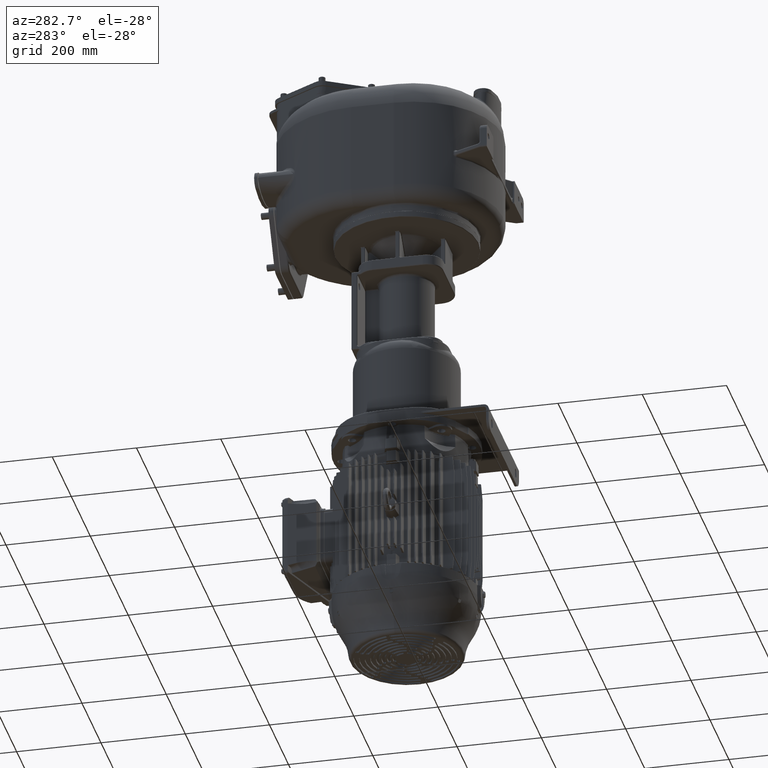
[diagram: clean part render]
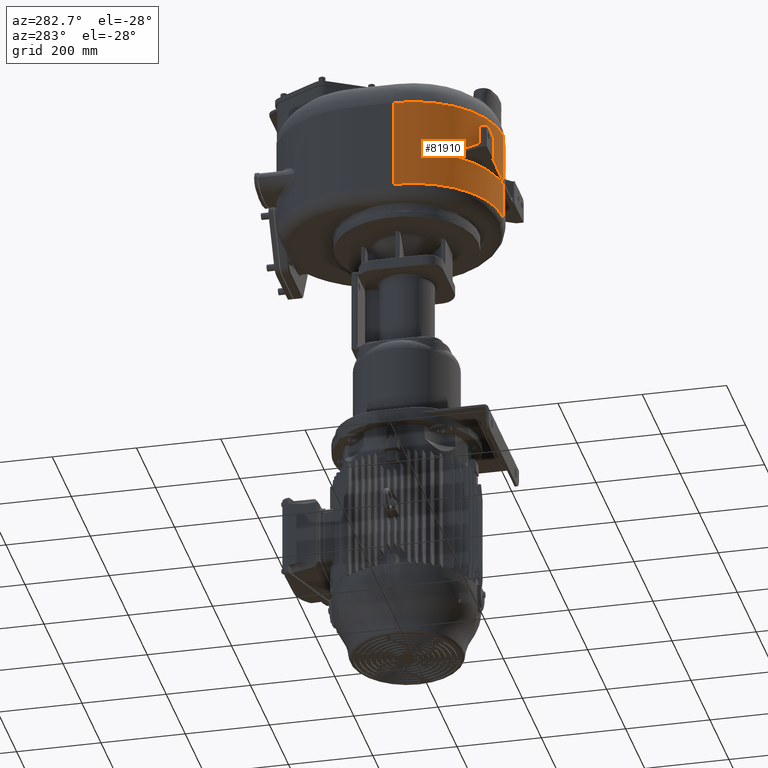
[diagram: same view with one face highlighted and labeled with its STEP entity id]
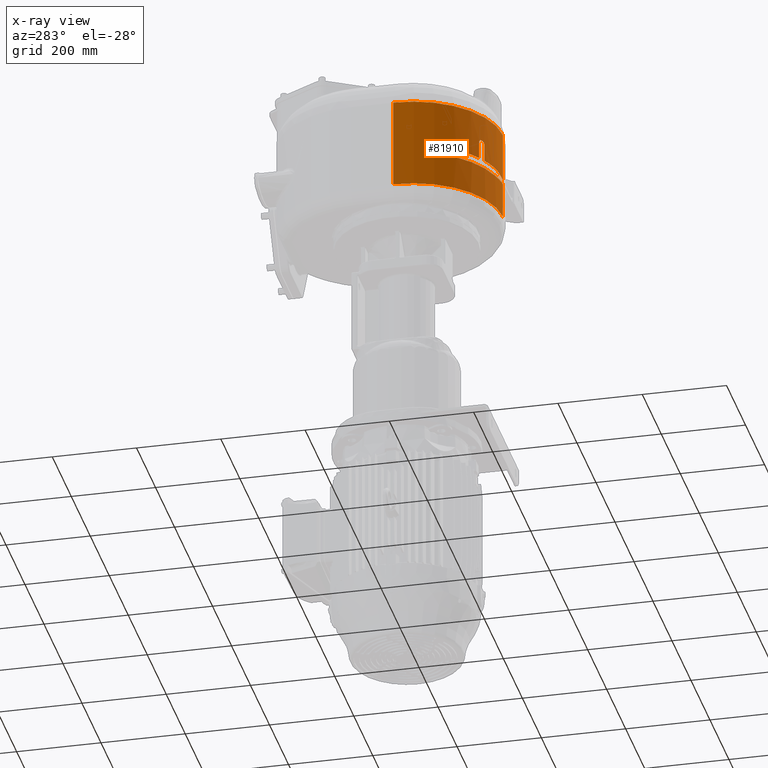
[diagram: x-ray of the same camera — body ghosted, the highlighted face saturated]
A machine part, auxiliary view. The second image highlights one B-rep face of the part: STEP entity #81910.
The next image is the same camera in x-ray: the body ghosted, the highlighted face saturated — about 0% of this face is hidden behind the body in this view.
In plain terms, the highlighted cylindrical surface (partial cylindrical patch) has radius 212 mm, axis along (0, 0, -1).
Its self-contained STEP definition (entity closure, byte-faithful):
#21895=DIRECTION('',(4.513141593375E-11,-3.922041858622E-7,-9.999999999999E-1));
#21896=VECTOR('',#21895,8.512701665594E1);
#21897=CARTESIAN_POINT('',(1.299999999617E1,4.000033387172E0,
-3.487298334407E1));
#21898=LINE('',#21897,#21896);
#21899=CARTESIAN_POINT('',(1.3E1,2.16E2,-1.2E2));
#21900=DIRECTION('',(0.E0,0.E0,-1.E0));
#21901=DIRECTION('',(0.E0,-1.E0,0.E0));
#21902=AXIS2_PLACEMENT_3D('',#21899,#21900,#21901);
#21904=CARTESIAN_POINT('',(1.3E1,2.16E2,9.4E1));
#21905=DIRECTION('',(0.E0,0.E0,1.E0));
#21906=DIRECTION('',(-1.E0,0.E0,0.E0));
#21907=AXIS2_PLACEMENT_3D('',#21904,#21905,#21906);
#21909=DIRECTION('',(2.821944856275E-11,2.893217573858E-7,-1.E0));
#21910=VECTOR('',#21909,1.181270166560E2);
#21911=CARTESIAN_POINT('',(1.300000000004E1,4.E0,9.4E1));
#21912=LINE('',#21911,#21910);
#21913=CARTESIAN_POINT('',(1.300000000338E1,4.000034176716E0,
-2.412701665602E1));
#21914=CARTESIAN_POINT('',(1.237162745277E1,4.000064411701E0,
-2.412677425144E1));
#21915=CARTESIAN_POINT('',(1.109724350928E1,4.005587830284E0,
-2.411535723867E1));
#21916=CARTESIAN_POINT('',(9.147282612950E0,4.031925356394E0,
-2.406714353590E1));
#21917=CARTESIAN_POINT('',(7.116007982803E0,4.078257220314E0,
-2.398490606292E1));
#21918=CARTESIAN_POINT('',(4.975580684508E0,4.148100437059E0,
-2.386522206394E1));
#21919=CARTESIAN_POINT('',(2.696057732537E0,4.246141662673E0,
-2.370355654741E1));
#21920=CARTESIAN_POINT('',(2.315929024124E-1,4.379657219867E0,
-2.349573835312E1));
#21921=CARTESIAN_POINT('',(-2.462465935251E0,4.558259210553E0,
-2.323742179956E1));
#21922=CARTESIAN_POINT('',(-5.443850500277E0,4.796181275642E0,
-2.292451495860E1));
#21923=CARTESIAN_POINT('',(-8.625108674660E0,5.097435990249E0,
-2.256987694279E1));
#21924=CARTESIAN_POINT('',(-1.189250414593E1,5.457837124087E0,
-2.219588249925E1));
#21925=CARTESIAN_POINT('',(-1.515612858986E1,5.869646889473E0,
-2.182355145446E1));
#21926=CARTESIAN_POINT('',(-1.832379331602E1,6.319041217836E0,
-2.147244776413E1));
#21927=CARTESIAN_POINT('',(-2.136023318684E1,6.795832158027E0,
-2.115325002567E1));
#21928=CARTESIAN_POINT('',(-2.425216008936E1,7.292052318312E0,
-2.087127109073E1));
#21929=CARTESIAN_POINT('',(-2.699686308782E1,7.801257045566E0,
-2.062915357448E1));
#21930=CARTESIAN_POINT('',(-2.959600620637E1,8.318034853362E0,
-2.042756480443E1));
#21931=CARTESIAN_POINT('',(-3.205381006348E1,8.837876736388E0,
-2.026618323551E1));
#21932=CARTESIAN_POINT('',(-3.437491595962E1,9.356831112880E0,
-2.014390945827E1));
#21933=CARTESIAN_POINT('',(-3.656290352264E1,9.871143372862E0,
-2.005924917253E1));
#21934=CARTESIAN_POINT('',(-3.862111284008E1,1.037735410997E1,
-2.001031968690E1));
#21935=CARTESIAN_POINT('',(-3.990998583612E1,1.070766018576E1,
-1.999999281673E1));
#21936=CARTESIAN_POINT('',(-4.053349301459E1,1.087037656974E1,
-2.000000000003E1));
#21938=CARTESIAN_POINT('',(1.3E1,2.16E2,-2.E1));
#21939=DIRECTION('',(0.E0,0.E0,-1.E0));
#21940=DIRECTION('',(-2.525164841351E-1,-9.675925925926E-1,0.E0));
#21941=AXIS2_PLACEMENT_3D('',#21938,#21939,#21940);
#21943=DIRECTION('',(-1.009970252130E-6,-2.003315182879E-6,9.999999999975E-1));
#21944=VECTOR('',#21943,4.100000002440E1);
#21945=CARTESIAN_POINT('',(-8.242435041482E1,2.669021856251E1,-2.E1));
#21946=LINE('',#21945,#21944);
#21947=CARTESIAN_POINT('',(-8.242439182360E1,2.669013642659E1,
2.100000002430E1));
#21948=CARTESIAN_POINT('',(-8.242437055612E1,2.669013946063E1,
2.109300576867E1));
#21949=CARTESIAN_POINT('',(-8.242758582931E1,2.669189080320E1,
2.127962382726E1));
#21950=CARTESIAN_POINT('',(-8.244104074505E1,2.669862104190E1,
2.156170637136E1));
#21951=CARTESIAN_POINT('',(-8.246404985416E1,2.671023700079E1,
2.184493863127E1));
#21952=CARTESIAN_POINT('',(-8.249663938084E1,2.672667185530E1,
2.212863502047E1));
#21953=CARTESIAN_POINT('',(-8.253882316192E1,2.674796142819E1,
2.241203433552E1));
#21954=CARTESIAN_POINT('',(-8.259049275679E1,2.677405294226E1,
2.269440190692E1));
#21955=CARTESIAN_POINT('',(-8.265152669118E1,2.680489637953E1,
2.297500795991E1));
#21956=CARTESIAN_POINT('',(-8.272174793532E1,2.684041311955E1,
2.325308994288E1));
#21957=CARTESIAN_POINT('',(-8.280104226065E1,2.688055827719E1,
2.352823343610E1));
#21958=CARTESIAN_POINT('',(-8.288933153921E1,2.692530656670E1,
2.380009588734E1));
#21959=CARTESIAN_POINT('',(-8.298653390671E1,2.697463229748E1,
2.406829487834E1));
#21960=CARTESIAN_POINT('',(-8.309262459145E1,2.702854019940E1,
2.433248565283E1));
#21961=CARTESIAN_POINT('',(-8.320757926381E1,2.708703679564E1,
2.459263923461E1));
#21962=CARTESIAN_POINT('',(-8.333133451695E1,2.715011017752E1,
2.484869084842E1));
#21963=CARTESIAN_POINT('',(-8.346391845280E1,2.721779661157E1,
2.510061514790E1));
#21964=CARTESIAN_POINT('',(-8.360515488528E1,2.729002955504E1,
2.534793853888E1));
#21965=CARTESIAN_POINT('',(-8.375472646364E1,2.736667091799E1,
2.558999630007E1));
#21966=CARTESIAN_POINT('',(-8.391230329438E1,2.744757639330E1,
2.582617793122E1));
#21967=CARTESIAN_POINT('',(-8.407753080825E1,2.753258886942E1,
2.605591305350E1));
#21968=CARTESIAN_POINT('',(-8.425034461750E1,2.762170074547E1,
2.627901898315E1));
#21969=CARTESIAN_POINT('',(-8.443064527765E1,2.771488729278E1,
2.649531924484E1));
#21970=CARTESIAN_POINT('',(-8.461834673342E1,2.781213145989E1,
2.670471961568E1));
#21971=CARTESIAN_POINT('',(-8.481323492863E1,2.791335046959E1,
2.690692671967E1));
#21972=CARTESIAN_POINT('',(-8.501494113519E1,2.801838087778E1,
2.710151137672E1));
#21973=CARTESIAN_POINT('',(-8.522310735834E1,2.812706389510E1,
2.728808932551E1));
#21974=CARTESIAN_POINT('',(-8.543734214313E1,2.823922211475E1,
2.746627656780E1));
#21975=CARTESIAN_POINT('',(-8.565737457966E1,2.835474008828E1,
2.763581067328E1));
#21976=CARTESIAN_POINT('',(-8.588293938124E1,2.847350456483E1,
2.779641726124E1));
#21977=CARTESIAN_POINT('',(-8.611376515421E1,2.859539817814E1,
2.794785607671E1));
#21978=CARTESIAN_POINT('',(-8.634953931403E1,2.872028071056E1,
2.808993723250E1));
#21979=CARTESIAN_POINT('',(-8.658989732943E1,2.884798289412E1,
2.822243550209E1));
#21980=CARTESIAN_POINT('',(-8.683447271049E1,2.897833254975E1,
2.834514228541E1));
#21981=CARTESIAN_POINT('',(-8.708289196431E1,2.911115178293E1,
2.845785612075E1));
#21982=CARTESIAN_POINT('',(-8.733475742795E1,2.924624757566E1,
2.856037723862E1));
#21983=CARTESIAN_POINT('',(-8.758966076425E1,2.938341873998E1,
2.865251737336E1));
#21984=CARTESIAN_POINT('',(-8.784719009992E1,2.952245957089E1,
2.873409764708E1));
#21985=CARTESIAN_POINT('',(-8.810693114042E1,2.966316039514E1,
2.880496853396E1));
#21986=CARTESIAN_POINT('',(-8.836847242988E1,2.980531006751E1,
2.886505443869E1));
#21987=CARTESIAN_POINT('',(-8.863139852648E1,2.994869318828E1,
2.891428587463E1));
#21988=CARTESIAN_POINT('',(-8.889529890708E1,3.009309117104E1,
2.895261532087E1));
#21989=CARTESIAN_POINT('',(-8.915974498661E1,3.023828349406E1,
2.897999257722E1));
#21990=CARTESIAN_POINT('',(-8.942438189462E1,3.038404611709E1,
2.899644740496E1));
#21991=CARTESIAN_POINT('',(-8.960052254986E1,3.048145609983E1,
2.900000446744E1));
#21992=CARTESIAN_POINT('',(-8.968857484883E1,3.053019789379E1,
2.899999999973E1));
#21994=CARTESIAN_POINT('',(1.3E1,2.16E2,2.9E1));
#21995=DIRECTION('',(0.E0,0.E0,-1.E0));
#21996=DIRECTION('',(-4.843801190784E-1,-8.748576457011E-1,0.E0));
#21997=AXIS2_PLACEMENT_3D('',#21994,#21995,#21996);
#21999=CARTESIAN_POINT('',(-9.146814129177E1,3.152667015918E1,
2.899999999998E1));
#22000=CARTESIAN_POINT('',(-9.155468504804E1,3.157569402916E1,
2.900003071213E1));
#22001=CARTESIAN_POINT('',(-9.172780947850E1,3.167388370671E1,
2.899647680225E1));
#22002=CARTESIAN_POINT('',(-9.198784308193E1,3.182187357057E1,
2.898029898864E1));
#22003=CARTESIAN_POINT('',(-9.224733882145E1,3.197003653321E1,
2.895321536720E1));
#22004=CARTESIAN_POINT('',(-9.250571571432E1,3.211804513091E1,
2.891528449959E1));
#22005=CARTESIAN_POINT('',(-9.276232471685E1,3.226551861548E1,
2.886659981461E1));
#22006=CARTESIAN_POINT('',(-9.301652305036E1,3.241207762850E1,
2.880731791595E1));
#22007=CARTESIAN_POINT('',(-9.326778047908E1,3.255740245065E1,
2.873762389401E1));
#22008=CARTESIAN_POINT('',(-9.351591389640E1,3.270137158997E1,
2.865762347228E1));
#22009=CARTESIAN_POINT('',(-9.376067944499E1,3.284382702495E1,
2.856742862142E1));
#22010=CARTESIAN_POINT('',(-9.400191894171E1,3.298465915033E1,
2.846709676840E1));
#22011=CARTESIAN_POINT('',(-9.423956893640E1,3.312381299177E1,
2.835667786110E1));
#22012=CARTESIAN_POINT('',(-9.447360256879E1,3.326125499307E1,
2.823621918487E1));
#22013=CARTESIAN_POINT('',(-9.470367787615E1,3.339676589667E1,
2.810587882856E1));
#22014=CARTESIAN_POINT('',(-9.492917913361E1,3.352996227021E1,
2.796600796244E1));
#22015=CARTESIAN_POINT('',(-9.514955316310E1,3.366049386639E1,
2.781698929852E1));
#22016=CARTESIAN_POINT('',(-9.536440513644E1,3.378810143702E1,
2.765915256588E1));
#22017=CARTESIAN_POINT('',(-9.557344697894E1,3.391258751967E1,
2.749277121964E1));
#22018=CARTESIAN_POINT('',(-9.577634797927E1,3.403372789978E1,
2.731817788704E1));
#22019=CARTESIAN_POINT('',(-9.597308927214E1,3.415148391044E1,
2.713542889917E1));
#22020=CARTESIAN_POINT('',(-9.616370956678E1,3.426585220281E1,
2.694449469843E1));
#22021=CARTESIAN_POINT('',(-9.634826026046E1,3.437683813537E1,
2.674539378231E1));
#22022=CARTESIAN_POINT('',(-9.652647207763E1,3.448425460236E1,
2.653841749238E1));
#22023=CARTESIAN_POINT('',(-9.669806253179E1,3.458790571777E1,
2.632389928888E1));
#22024=CARTESIAN_POINT('',(-9.686275337527E1,3.468759765190E1,
2.610218174647E1));
#22025=CARTESIAN_POINT('',(-9.702013612103E1,3.478305706537E1,
2.587382970491E1));
#22026=CARTESIAN_POINT('',(-9.716983043139E1,3.487402683179E1,
2.563946122986E1));
#22027=CARTESIAN_POINT('',(-9.731156640975E1,3.496031653644E1,
2.539961704887E1));
#22028=CARTESIAN_POINT('',(-9.744540870030E1,3.504194018687E1,
2.515427748168E1));
#22029=CARTESIAN_POINT('',(-9.757134510979E1,3.511886651521E1,
2.490342696093E1));
#22030=CARTESIAN_POINT('',(-9.768938705662E1,3.519108000313E1,
2.464713600438E1));
#22031=CARTESIAN_POINT('',(-9.779944342210E1,3.525850368498E1,
2.438563512310E1));
#22032=CARTESIAN_POINT('',(-9.790144448452E1,3.532107481649E1,
2.411903936263E1));
#22033=CARTESIAN_POINT('',(-9.799516310301E1,3.537863515596E1,
2.384783409492E1));
#22034=CARTESIAN_POINT('',(-9.808027491582E1,3.543096746391E1,
2.357292607950E1));
#22035=CARTESIAN_POINT('',(-9.815652807858E1,3.547789988062E1,
2.329527969978E1));
#22036=CARTESIAN_POINT('',(-9.822388389708E1,3.551939312479E1,
2.301528397107E1));
#22037=CARTESIAN_POINT('',(-9.828237883627E1,3.555545580860E1,
2.273293672181E1));
#22038=CARTESIAN_POINT('',(-9.833197926503E1,3.558605593047E1,
2.244827253503E1));
#22039=CARTESIAN_POINT('',(-9.837264215800E1,3.561115448759E1,
2.216152684918E1));
#22040=CARTESIAN_POINT('',(-9.840433933323E1,3.563073437324E1,
2.187302459181E1));
#22041=CARTESIAN_POINT('',(-9.842706740631E1,3.564475470536E1,
2.158308035536E1));
#22042=CARTESIAN_POINT('',(-9.844066847361E1,3.565323365272E1,
2.129197446042E1));
#22043=CARTESIAN_POINT('',(-9.844391325200E1,3.565505242121E1,
2.109742144004E1));
#22044=CARTESIAN_POINT('',(-9.844391281594E1,3.565506377796E1,
2.099999998002E1));
#22046=DIRECTION('',(1.261698355727E-6,2.041802818780E-6,-9.999999999971E-1));
#22047=VECTOR('',#22046,4.099999998014E1);
#22048=CARTESIAN_POINT('',(-9.844391281594E1,3.565506377796E1,
2.099999998002E1));
#22049=LINE('',#22048,#22047);
#22050=CARTESIAN_POINT('',(1.3E1,2.16E2,-2.E1));
#22051=DIRECTION('',(0.E0,0.E0,-1.E0));
#22052=DIRECTION('',(-5.256785900329E-1,-8.506832665458E-1,0.E0));
#22053=AXIS2_PLACEMENT_3D('',#22050,#22051,#22052);
#22055=CARTESIAN_POINT('',(-1.476564870725E2,7.767629360068E1,
-2.000000000424E1));
#22056=CARTESIAN_POINT('',(-1.477279553283E2,7.775929237307E1,
-2.000000300508E1));
#22057=CARTESIAN_POINT('',(-1.478709224220E2,7.792537370747E1,
-2.000356006508E1));
#22058=CARTESIAN_POINT('',(-1.480851279639E2,7.817542919705E1,
-2.002070724317E1));
#22059=CARTESIAN_POINT('',(-1.482987787121E2,7.842550598528E1,
-2.004912358653E1));
#22060=CARTESIAN_POINT('',(-1.485114299994E2,7.867522689771E1,
-2.008891918470E1));
#22061=CARTESIAN_POINT('',(-1.487226802361E2,7.892407177537E1,
-2.013997137254E1));
#22062=CARTESIAN_POINT('',(-1.489321140338E2,7.917154839855E1,
-2.020219071558E1));
#22063=CARTESIAN_POINT('',(-1.491393293652E2,7.941716085607E1,
-2.027543883501E1));
#22064=CARTESIAN_POINT('',(-1.493439234135E2,7.966041002122E1,
-2.035954007576E1));
#22065=CARTESIAN_POINT('',(-1.495455652687E2,7.990087588150E1,
-2.045430614135E1));
#22066=CARTESIAN_POINT('',(-1.497439668599E2,8.013818546995E1,
-2.055953843785E1));
#22067=CARTESIAN_POINT('',(-1.499388457171E2,8.037196859610E1,
-2.067500944388E1));
#22068=CARTESIAN_POINT('',(-1.501299354936E2,8.060187090486E1,
-2.080046911001E1));
#22069=CARTESIAN_POINT('',(-1.503169079600E2,8.082745998013E1,
-2.093557386386E1));
#22070=CARTESIAN_POINT('',(-1.504994325632E2,8.104829657688E1,
-2.107996010618E1));
#22071=CARTESIAN_POINT('',(-1.506771701274E2,8.126392717712E1,
-2.123322211094E1));
#22072=CARTESIAN_POINT('',(-1.508498558116E2,8.147398502500E1,
-2.139496609971E1));
#22073=CARTESIAN_POINT('',(-1.510173671523E2,8.167827486695E1,
-2.156490708648E1));
#22074=CARTESIAN_POINT('',(-1.511795743359E2,8.187659205087E1,
-2.174274564514E1));
#22075=CARTESIAN_POINT('',(-1.513363719581E2,8.206876141227E1,
-2.192819398809E1));
#22076=CARTESIAN_POINT('',(-1.514876428396E2,8.225459330801E1,
-2.212093207052E1));
#22077=CARTESIAN_POINT('',(-1.516332780162E2,8.243390817069E1,
-2.232061867215E1));
#22078=CARTESIAN_POINT('',(-1.517731818474E2,8.260654309691E1,
-2.252690223866E1));
#22079=CARTESIAN_POINT('',(-1.519072347932E2,8.277230617009E1,
-2.273939500535E1));
#22080=CARTESIAN_POINT('',(-1.520351929253E2,8.293085152211E1,
-2.295748559067E1));
#22081=CARTESIAN_POINT('',(-1.521568415867E2,8.308186894491E1,
-2.318053902209E1));
#22082=CARTESIAN_POINT('',(-1.522719753555E2,8.322505965342E1,
-2.340785375582E1));
#22083=CARTESIAN_POINT('',(-1.523805430840E2,8.336031733052E1,
-2.363894248897E1));
#22084=CARTESIAN_POINT('',(-1.524827944022E2,8.348791323641E1,
-2.387400646042E1));
#22085=CARTESIAN_POINT('',(-1.525788861486E2,8.360800680409E1,
-2.411318216963E1));
#22086=CARTESIAN_POINT('',(-1.526689906940E2,8.372078010397E1,
-2.435683606127E1));
#22087=CARTESIAN_POINT('',(-1.527530828151E2,8.382617066366E1,
-2.460462803171E1));
#22088=CARTESIAN_POINT('',(-1.528309786126E2,8.392391841487E1,
-2.485565920977E1));
#22089=CARTESIAN_POINT('',(-1.529025619859E2,8.401384943203E1,
-2.510916457280E1));
#22090=CARTESIAN_POINT('',(-1.529677278262E2,8.409580513734E1,
-2.536430464550E1));
#22091=CARTESIAN_POINT('',(-1.530265496628E2,8.416985370360E1,
-2.562089836156E1));
#22092=CARTESIAN_POINT('',(-1.530790821241E2,8.423604216770E1,
-2.587886715119E1));
#22093=CARTESIAN_POINT('',(-1.531253512666E2,8.429438410514E1,
-2.613814312231E1));
#22094=CARTESIAN_POINT('',(-1.531653389082E2,8.434483926427E1,
-2.639875631103E1));
#22095=CARTESIAN_POINT('',(-1.531991067760E2,8.438747176003E1,
-2.666090716110E1));
#22096=CARTESIAN_POINT('',(-1.532268192265E2,8.442247315485E1,
-2.692469402898E1));
#22097=CARTESIAN_POINT('',(-1.532485120796E2,8.444989264548E1,
-2.719027714310E1));
#22098=CARTESIAN_POINT('',(-1.532642651316E2,8.446977178165E1,
-2.745783499320E1));
#22099=CARTESIAN_POINT('',(-1.532736922518E2,8.448180950227E1,
-2.772753475144E1));
#22100=CARTESIAN_POINT('',(-1.532764351159E2,8.448497917117E1,
-2.790892200939E1));
#22101=CARTESIAN_POINT('',(-1.532764531046E2,8.448505803682E1,-2.800000007E1));
#22103=DIRECTION('',(-9.477488548443E-6,-7.499656473425E-6,-9.999999999270E-1));
#22104=VECTOR('',#22103,3.000000021987E0);
#22105=CARTESIAN_POINT('',(-1.532764531046E2,8.448505803682E1,-2.800000007E1));
#22106=LINE('',#22105,#22104);
#22107=CARTESIAN_POINT('',(-1.532764815371E2,8.448503553785E1,
-3.100000009177E1));
#22108=CARTESIAN_POINT('',(-1.532764973115E2,8.448510486051E1,
-3.108533750128E1));
#22109=CARTESIAN_POINT('',(-1.532741707689E2,8.448239267476E1,
-3.125709387137E1));
#22110=CARTESIAN_POINT('',(-1.532657986314E2,8.447171619855E1,
-3.151838619277E1));
#22111=CARTESIAN_POINT('',(-1.532508673783E2,8.445286775719E1,
-3.178210023370E1));
#22112=CARTESIAN_POINT('',(-1.532296026231E2,8.442599006075E1,
-3.204741836309E1));
#22113=CARTESIAN_POINT('',(-1.532019488790E2,8.439106068980E1,
-3.231343360197E1));
#22114=CARTESIAN_POINT('',(-1.531679783077E2,8.434817055429E1,
-3.257925295759E1));
#22115=CARTESIAN_POINT('',(-1.531277679446E2,8.429743235899E1,
-3.284399693383E1));
#22116=CARTESIAN_POINT('',(-1.530814521953E2,8.423902954687E1,
-3.310670331137E1));
#22117=CARTESIAN_POINT('',(-1.530290767980E2,8.417303652702E1,
-3.336701205350E1));
#22118=CARTESIAN_POINT('',(-1.529706241857E2,8.409944973586E1,
-3.362473306884E1));
#22119=CARTESIAN_POINT('',(-1.529060462723E2,8.401822950926E1,
-3.387957420151E1));
#22120=CARTESIAN_POINT('',(-1.528352877051E2,8.392932939608E1,
-3.413130216124E1));
#22121=CARTESIAN_POINT('',(-1.527582648904E2,8.383266996003E1,
-3.438028061782E1));
#22122=CARTESIAN_POINT('',(-1.526748433028E2,8.372811059340E1,
-3.462673631354E1));
#22123=CARTESIAN_POINT('',(-1.525848020596E2,8.361540581198E1,
-3.487095966955E1));
#22124=CARTESIAN_POINT('',(-1.524880762438E2,8.349450898982E1,
-3.511263964512E1));
#22125=CARTESIAN_POINT('',(-1.523848775594E2,8.336572122110E1,
-3.535082592995E1));
#22126=CARTESIAN_POINT('',(-1.522754041101E2,8.322932723211E1,
-3.558473346457E1));
#22127=CARTESIAN_POINT('',(-1.521599488790E2,8.308572998745E1,
-3.581348965206E1));
#22128=CARTESIAN_POINT('',(-1.520385585651E2,8.293502612619E1,
-3.603676196891E1));
#22129=CARTESIAN_POINT('',(-1.519111692982E2,8.277717691760E1,
-3.625446361375E1));
#22130=CARTESIAN_POINT('',(-1.517777346102E2,8.261216750878E1,
-3.646646200593E1));
#22131=CARTESIAN_POINT('',(-1.516382149682E2,8.243999389592E1,
-3.667257820882E1));
#22132=CARTESIAN_POINT('',(-1.514927014286E2,8.226081487587E1,
-3.687243560646E1));
#22133=CARTESIAN_POINT('',(-1.513412966318E2,8.207480405723E1,
-3.706566657579E1));
#22134=CARTESIAN_POINT('',(-1.511841127403E2,8.188214716559E1,
-3.725190547390E1));
#22135=CARTESIAN_POINT('',(-1.510213214816E2,8.168310291470E1,
-3.743073016039E1));
#22136=CARTESIAN_POINT('',(-1.508531957916E2,8.147805252798E1,
-3.760164365558E1));
#22137=CARTESIAN_POINT('',(-1.506799934742E2,8.126735660553E1,
-3.776420271587E1));
#22138=CARTESIAN_POINT('',(-1.505019776439E2,8.105137991253E1,
-3.791797958341E1));
#22139=CARTESIAN_POINT('',(-1.503193434160E2,8.083040248410E1,
-3.806266546398E1));
#22140=CARTESIAN_POINT('',(-1.501322748147E2,8.060468925606E1,
-3.819798605969E1));
#22141=CARTESIAN_POINT('',(-1.499409771283E2,8.037452887147E1,
-3.832367492834E1));
#22142=CARTESIAN_POINT('',(-1.497456730498E2,8.014022867767E1,
-3.843947266046E1));
#22143=CARTESIAN_POINT('',(-1.495467156226E2,7.990224907329E1,
-3.854507189060E1));
#22144=CARTESIAN_POINT('',(-1.493444708857E2,7.966106119659E1,
-3.864020126773E1));
#22145=CARTESIAN_POINT('',(-1.491393184772E2,7.941714732317E1,
-3.872462625339E1));
#22146=CARTESIAN_POINT('',(-1.489316391148E2,7.917098578219E1,
-3.879811084529E1));
#22147=CARTESIAN_POINT('',(-1.487218503321E2,7.892309254300E1,
-3.886045693390E1));
#22148=CARTESIAN_POINT('',(-1.485103792618E2,7.867399002763E1,
-3.891152188574E1));
#22149=CARTESIAN_POINT('',(-1.482976616211E2,7.842419965093E1,
-3.895121893412E1));
#22150=CARTESIAN_POINT('',(-1.480841456988E2,7.817426896931E1,
-3.897949478831E1));
#22151=CARTESIAN_POINT('',(-1.478702570802E2,7.792464558532E1,
-3.899640926628E1));
#22152=CARTESIAN_POINT('',(-1.477277634023E2,7.775896946983E1,
-3.900002108310E1));
#22153=CARTESIAN_POINT('',(-1.476565550205E2,7.767623511742E1,
-3.899999999973E1));
#22155=CARTESIAN_POINT('',(1.3E1,2.16E2,-3.9E1));
#22156=DIRECTION('',(0.E0,0.E0,1.E0));
#22157=DIRECTION('',(-7.578140010561E-1,-6.524706428670E-1,0.E0));
#22158=AXIS2_PLACEMENT_3D('',#22155,#22156,#22157);
#22160=CARTESIAN_POINT('',(-4.053349305294E1,1.087037643904E1,
-3.899999999996E1));
#22161=CARTESIAN_POINT('',(-3.991011959754E1,1.070769566159E1,
-3.900000907332E1));
#22162=CARTESIAN_POINT('',(-3.862151447746E1,1.037745609296E1,
-3.898969232779E1));
#22163=CARTESIAN_POINT('',(-3.656372079811E1,9.871341422147E0,
-3.894076674609E1));
#22164=CARTESIAN_POINT('',(-3.437611984479E1,9.357108508731E0,
-3.885615445304E1));
#22165=CARTESIAN_POINT('',(-3.205533393687E1,8.838209090207E0,
-3.873389735021E1));
#22166=CARTESIAN_POINT('',(-2.959775051926E1,8.318393911111E0,
-3.857256830406E1));
#22167=CARTESIAN_POINT('',(-2.699891335687E1,7.801651428835E0,
-3.837100986120E1));
#22168=CARTESIAN_POINT('',(-2.425434746463E1,7.292445202811E0,
-3.812893534273E1));
#22169=CARTESIAN_POINT('',(-2.136293112533E1,6.796273948046E0,
-3.784702461781E1));
#22170=CARTESIAN_POINT('',(-1.832606043922E1,6.319383635696E0,
-3.752778905784E1));
#22171=CARTESIAN_POINT('',(-1.515979033307E1,5.870138747879E0,
-3.717688023497E1));
#22172=CARTESIAN_POINT('',(-1.189475833157E1,5.458094466158E0,
-3.680434859035E1));
#22173=CARTESIAN_POINT('',(-8.627225481505E0,5.097664133206E0,
-3.643040314833E1));
#22174=CARTESIAN_POINT('',(-5.448192840503E0,4.796557127237E0,
-3.607591983815E1));
#22175=CARTESIAN_POINT('',(-2.462524712840E0,4.558237787799E0,
-3.576257875842E1));
#22176=CARTESIAN_POINT('',(2.357358934041E-1,4.379398930726E0,
-3.550395899935E1));
#22177=CARTESIAN_POINT('',(2.700373205626E0,4.245935876339E0,
-3.529616261380E1));
#22178=CARTESIAN_POINT('',(4.978480077484E0,4.147995887590E0,
-3.513456714352E1));
#22179=CARTESIAN_POINT('',(7.117563784723E0,4.078217722262E0,
-3.501489865767E1));
#22180=CARTESIAN_POINT('',(9.147961815581E0,4.031914943044E0,
-3.493274438260E1));
#22181=CARTESIAN_POINT('',(1.109738425132E1,4.005588489130E0,
-3.488460370730E1));
#22182=CARTESIAN_POINT('',(1.237163655648E1,4.000062699675E0,
-3.487321845199E1));
#22183=CARTESIAN_POINT('',(1.299999999617E1,4.000033387172E0,
-3.487298334407E1));
#22453=CARTESIAN_POINT('',(1.300000000338E1,4.000034176716E0,
-2.412701665602E1));
#30653=DIRECTION('',(0.E0,2.007847678359E-12,1.E0));
#30654=VECTOR('',#30653,2.14E2);
#30655=CARTESIAN_POINT('',(-1.99E2,2.16E2,-1.2E2));
#30656=LINE('',#30655,#30654);
#51106=CARTESIAN_POINT('',(-1.99E2,2.16E2,-1.2E2));
#51107=CARTESIAN_POINT('',(-1.99E2,2.160000000004E2,9.4E1));
#51108=VERTEX_POINT('',#51106);
#51109=VERTEX_POINT('',#51107);
#51148=CARTESIAN_POINT('',(1.3E1,4.E0,-1.2E2));
#51149=VERTEX_POINT('',#51148);
#51166=CARTESIAN_POINT('',(1.3E1,4.E0,9.4E1));
#51167=VERTEX_POINT('',#51166);
#51607=CARTESIAN_POINT('',(1.299999999617E1,4.000033387172E0,
-3.487298334407E1));
#51608=VERTEX_POINT('',#51607);
#51660=VERTEX_POINT('',#21947);
#51661=VERTEX_POINT('',#21992);
#51664=CARTESIAN_POINT('',(-9.146813900415E1,3.152667419649E1,2.9E1));
#51665=VERTEX_POINT('',#51664);
#51668=VERTEX_POINT('',#22044);
#51670=CARTESIAN_POINT('',(-9.844386108631E1,3.565514749188E1,-2.E1));
#51671=VERTEX_POINT('',#51670);
#51676=CARTESIAN_POINT('',(-1.476565682239E2,7.767622371219E1,-2.E1));
#51677=VERTEX_POINT('',#51676);
#51680=VERTEX_POINT('',#22101);
#51682=CARTESIAN_POINT('',(-1.532764815371E2,8.448503553785E1,
-3.100000009177E1));
#51683=VERTEX_POINT('',#51682);
#51684=VERTEX_POINT('',#22153);
#51685=CARTESIAN_POINT('',(-4.053349463664E1,1.087037037037E1,-3.9E1));
#51686=VERTEX_POINT('',#51685);
#51719=VERTEX_POINT('',#22453);
#51721=VERTEX_POINT('',#21936);
#51723=CARTESIAN_POINT('',(-8.242435041483E1,2.669021856252E1,-2.E1));
#51724=VERTEX_POINT('',#51723);
#81868=CARTESIAN_POINT('',(1.3E1,2.16E2,-1.56E2));
#81869=DIRECTION('',(0.E0,0.E0,-1.E0));
#81870=DIRECTION('',(-1.E0,0.E0,0.E0));
#81871=AXIS2_PLACEMENT_3D('',#81868,#81869,#81870);
#81872=CYLINDRICAL_SURFACE('',#81871,2.12E2);
#81874=ORIENTED_EDGE('',*,*,#81873,.T.);
#81875=ORIENTED_EDGE('',*,*,#81859,.T.);
#81877=ORIENTED_EDGE('',*,*,#81876,.T.);
#81879=ORIENTED_EDGE('',*,*,#81878,.T.);
#81881=ORIENTED_EDGE('',*,*,#81880,.T.);
#81883=ORIENTED_EDGE('',*,*,#81882,.T.);
#81885=ORIENTED_EDGE('',*,*,#81884,.T.);
#81887=ORIENTED_EDGE('',*,*,#81886,.T.);
#81889=ORIENTED_EDGE('',*,*,#81888,.T.);
#81891=ORIENTED_EDGE('',*,*,#81890,.T.);
#81893=ORIENTED_EDGE('',*,*,#81892,.T.);
#81895=ORIENTED_EDGE('',*,*,#81894,.T.);
#81897=ORIENTED_EDGE('',*,*,#81896,.T.);
#81899=ORIENTED_EDGE('',*,*,#81898,.T.);
#81901=ORIENTED_EDGE('',*,*,#81900,.T.);
#81903=ORIENTED_EDGE('',*,*,#81902,.T.);
#81905=ORIENTED_EDGE('',*,*,#81904,.T.);
#81907=ORIENTED_EDGE('',*,*,#81906,.T.);
#81908=EDGE_LOOP('',(#81874,#81875,#81877,#81879,#81881,#81883,#81885,#81887,
#81889,#81891,#81893,#81895,#81897,#81899,#81901,#81903,#81905,#81907));
#81909=FACE_OUTER_BOUND('',#81908,.F.);
#81910=ADVANCED_FACE('',(#81909),#81872,.T.);
#21903=CIRCLE('',#21902,2.12E2);
#21908=CIRCLE('',#21907,2.12E2);
#21937=B_SPLINE_CURVE_WITH_KNOTS('',3,(#21913,#21914,#21915,#21916,#21917,
#21918,#21919,#21920,#21921,#21922,#21923,#21924,#21925,#21926,#21927,#21928,
#21929,#21930,#21931,#21932,#21933,#21934,#21935,#21936),.UNSPECIFIED.,.F.,.F.,(
4,1,1,1,1,1,1,1,1,1,1,1,1,1,1,1,1,1,1,1,1,4),(0.E0,4.761904761905E-2,
9.523809523810E-2,1.428571428571E-1,1.904761904762E-1,2.380952380952E-1,
2.857142857143E-1,3.333333333333E-1,3.809523809524E-1,4.285714285714E-1,
4.761904761905E-1,5.238095238095E-1,5.714285714286E-1,6.190476190476E-1,
6.666666666667E-1,7.142857142857E-1,7.619047619048E-1,8.095238095238E-1,
8.571428571429E-1,9.047619047619E-1,9.523809523810E-1,1.E0),.UNSPECIFIED.);
#21942=CIRCLE('',#21941,2.12E2);
#21993=B_SPLINE_CURVE_WITH_KNOTS('',3,(#21947,#21948,#21949,#21950,#21951,
#21952,#21953,#21954,#21955,#21956,#21957,#21958,#21959,#21960,#21961,#21962,
#21963,#21964,#21965,#21966,#21967,#21968,#21969,#21970,#21971,#21972,#21973,
#21974,#21975,#21976,#21977,#21978,#21979,#21980,#21981,#21982,#21983,#21984,
#21985,#21986,#21987,#21988,#21989,#21990,#21991,#21992),.UNSPECIFIED.,.F.,.F.,(
4,1,1,1,1,1,1,1,1,1,1,1,1,1,1,1,1,1,1,1,1,1,1,1,1,1,1,1,1,1,1,1,1,1,1,1,1,1,1,1,
1,1,1,4),(0.E0,2.325581395349E-2,4.651162790698E-2,6.976744186047E-2,
9.302325581395E-2,1.162790697674E-1,1.395348837209E-1,1.627906976744E-1,
1.860465116279E-1,2.093023255814E-1,2.325581395349E-1,2.558139534884E-1,
2.790697674419E-1,3.023255813953E-1,3.255813953488E-1,3.488372093023E-1,
3.720930232558E-1,3.953488372093E-1,4.186046511628E-1,4.418604651163E-1,
4.651162790698E-1,4.883720930233E-1,5.116279069767E-1,5.348837209302E-1,
5.581395348837E-1,5.813953488372E-1,6.046511627907E-1,6.279069767442E-1,
6.511627906977E-1,6.744186046512E-1,6.976744186047E-1,7.209302325581E-1,
7.441860465116E-1,7.674418604651E-1,7.906976744186E-1,8.139534883721E-1,
8.372093023256E-1,8.604651162791E-1,8.837209302326E-1,9.069767441860E-1,
9.302325581395E-1,9.534883720930E-1,9.767441860465E-1,1.E0),.UNSPECIFIED.);
#21998=CIRCLE('',#21997,2.12E2);
#22045=B_SPLINE_CURVE_WITH_KNOTS('',3,(#21999,#22000,#22001,#22002,#22003,
#22004,#22005,#22006,#22007,#22008,#22009,#22010,#22011,#22012,#22013,#22014,
#22015,#22016,#22017,#22018,#22019,#22020,#22021,#22022,#22023,#22024,#22025,
#22026,#22027,#22028,#22029,#22030,#22031,#22032,#22033,#22034,#22035,#22036,
#22037,#22038,#22039,#22040,#22041,#22042,#22043,#22044),.UNSPECIFIED.,.F.,.F.,(
4,1,1,1,1,1,1,1,1,1,1,1,1,1,1,1,1,1,1,1,1,1,1,1,1,1,1,1,1,1,1,1,1,1,1,1,1,1,1,1,
1,1,1,4),(0.E0,2.325581395349E-2,4.651162790698E-2,6.976744186047E-2,
9.302325581395E-2,1.162790697674E-1,1.395348837209E-1,1.627906976744E-1,
1.860465116279E-1,2.093023255814E-1,2.325581395349E-1,2.558139534884E-1,
2.790697674419E-1,3.023255813953E-1,3.255813953488E-1,3.488372093023E-1,
3.720930232558E-1,3.953488372093E-1,4.186046511628E-1,4.418604651163E-1,
4.651162790698E-1,4.883720930233E-1,5.116279069767E-1,5.348837209302E-1,
5.581395348837E-1,5.813953488372E-1,6.046511627907E-1,6.279069767442E-1,
6.511627906977E-1,6.744186046512E-1,6.976744186047E-1,7.209302325581E-1,
7.441860465116E-1,7.674418604651E-1,7.906976744186E-1,8.139534883721E-1,
8.372093023256E-1,8.604651162791E-1,8.837209302326E-1,9.069767441860E-1,
9.302325581395E-1,9.534883720930E-1,9.767441860465E-1,1.E0),.UNSPECIFIED.);
#22054=CIRCLE('',#22053,2.12E2);
#22102=B_SPLINE_CURVE_WITH_KNOTS('',3,(#22055,#22056,#22057,#22058,#22059,
#22060,#22061,#22062,#22063,#22064,#22065,#22066,#22067,#22068,#22069,#22070,
#22071,#22072,#22073,#22074,#22075,#22076,#22077,#22078,#22079,#22080,#22081,
#22082,#22083,#22084,#22085,#22086,#22087,#22088,#22089,#22090,#22091,#22092,
#22093,#22094,#22095,#22096,#22097,#22098,#22099,#22100,#22101),.UNSPECIFIED.,
.F.,.F.,(4,1,1,1,1,1,1,1,1,1,1,1,1,1,1,1,1,1,1,1,1,1,1,1,1,1,1,1,1,1,1,1,1,1,1,
1,1,1,1,1,1,1,1,1,4),(0.E0,2.272727272727E-2,4.545454545455E-2,
6.818181818182E-2,9.090909090909E-2,1.136363636364E-1,1.363636363636E-1,
1.590909090909E-1,1.818181818182E-1,2.045454545455E-1,2.272727272727E-1,2.5E-1,
2.727272727273E-1,2.954545454545E-1,3.181818181818E-1,3.409090909091E-1,
3.636363636364E-1,3.863636363636E-1,4.090909090909E-1,4.318181818182E-1,
4.545454545455E-1,4.772727272727E-1,5.E-1,5.227272727273E-1,5.454545454545E-1,
5.681818181818E-1,5.909090909091E-1,6.136363636364E-1,6.363636363636E-1,
6.590909090909E-1,6.818181818182E-1,7.045454545455E-1,7.272727272727E-1,7.5E-1,
7.727272727273E-1,7.954545454545E-1,8.181818181818E-1,8.409090909091E-1,
8.636363636364E-1,8.863636363636E-1,9.090909090909E-1,9.318181818182E-1,
9.545454545455E-1,9.772727272727E-1,1.E0),.UNSPECIFIED.);
#22154=B_SPLINE_CURVE_WITH_KNOTS('',3,(#22107,#22108,#22109,#22110,#22111,
#22112,#22113,#22114,#22115,#22116,#22117,#22118,#22119,#22120,#22121,#22122,
#22123,#22124,#22125,#22126,#22127,#22128,#22129,#22130,#22131,#22132,#22133,
#22134,#22135,#22136,#22137,#22138,#22139,#22140,#22141,#22142,#22143,#22144,
#22145,#22146,#22147,#22148,#22149,#22150,#22151,#22152,#22153),.UNSPECIFIED.,
.F.,.F.,(4,1,1,1,1,1,1,1,1,1,1,1,1,1,1,1,1,1,1,1,1,1,1,1,1,1,1,1,1,1,1,1,1,1,1,
1,1,1,1,1,1,1,1,1,4),(0.E0,2.272727272727E-2,4.545454545455E-2,
6.818181818182E-2,9.090909090909E-2,1.136363636364E-1,1.363636363636E-1,
1.590909090909E-1,1.818181818182E-1,2.045454545455E-1,2.272727272727E-1,2.5E-1,
2.727272727273E-1,2.954545454545E-1,3.181818181818E-1,3.409090909091E-1,
3.636363636364E-1,3.863636363636E-1,4.090909090909E-1,4.318181818182E-1,
4.545454545455E-1,4.772727272727E-1,5.E-1,5.227272727273E-1,5.454545454545E-1,
5.681818181818E-1,5.909090909091E-1,6.136363636364E-1,6.363636363636E-1,
6.590909090909E-1,6.818181818182E-1,7.045454545455E-1,7.272727272727E-1,7.5E-1,
7.727272727273E-1,7.954545454545E-1,8.181818181818E-1,8.409090909091E-1,
8.636363636364E-1,8.863636363636E-1,9.090909090909E-1,9.318181818182E-1,
9.545454545455E-1,9.772727272727E-1,1.E0),.UNSPECIFIED.);
#22159=CIRCLE('',#22158,2.12E2);
#22184=B_SPLINE_CURVE_WITH_KNOTS('',3,(#22160,#22161,#22162,#22163,#22164,
#22165,#22166,#22167,#22168,#22169,#22170,#22171,#22172,#22173,#22174,#22175,
#22176,#22177,#22178,#22179,#22180,#22181,#22182,#22183),.UNSPECIFIED.,.F.,.F.,(
4,1,1,1,1,1,1,1,1,1,1,1,1,1,1,1,1,1,1,1,1,4),(0.E0,4.761904761905E-2,
9.523809523810E-2,1.428571428571E-1,1.904761904762E-1,2.380952380952E-1,
2.857142857143E-1,3.333333333333E-1,3.809523809524E-1,4.285714285714E-1,
4.761904761905E-1,5.238095238095E-1,5.714285714286E-1,6.190476190476E-1,
6.666666666667E-1,7.142857142857E-1,7.619047619048E-1,8.095238095238E-1,
8.571428571429E-1,9.047619047619E-1,9.523809523810E-1,1.E0),.UNSPECIFIED.);
#81859=EDGE_CURVE('',#51149,#51108,#21903,.T.);
#81873=EDGE_CURVE('',#51608,#51149,#21898,.T.);
#81876=EDGE_CURVE('',#51108,#51109,#30656,.T.);
#81878=EDGE_CURVE('',#51109,#51167,#21908,.T.);
#81880=EDGE_CURVE('',#51167,#51719,#21912,.T.);
#81882=EDGE_CURVE('',#51719,#51721,#21937,.T.);
#81884=EDGE_CURVE('',#51721,#51724,#21942,.T.);
#81886=EDGE_CURVE('',#51724,#51660,#21946,.T.);
#81888=EDGE_CURVE('',#51660,#51661,#21993,.T.);
#81890=EDGE_CURVE('',#51661,#51665,#21998,.T.);
#81892=EDGE_CURVE('',#51665,#51668,#22045,.T.);
#81894=EDGE_CURVE('',#51668,#51671,#22049,.T.);
#81896=EDGE_CURVE('',#51671,#51677,#22054,.T.);
#81898=EDGE_CURVE('',#51677,#51680,#22102,.T.);
#81900=EDGE_CURVE('',#51680,#51683,#22106,.T.);
#81902=EDGE_CURVE('',#51683,#51684,#22154,.T.);
#81904=EDGE_CURVE('',#51684,#51686,#22159,.T.);
#81906=EDGE_CURVE('',#51686,#51608,#22184,.T.);